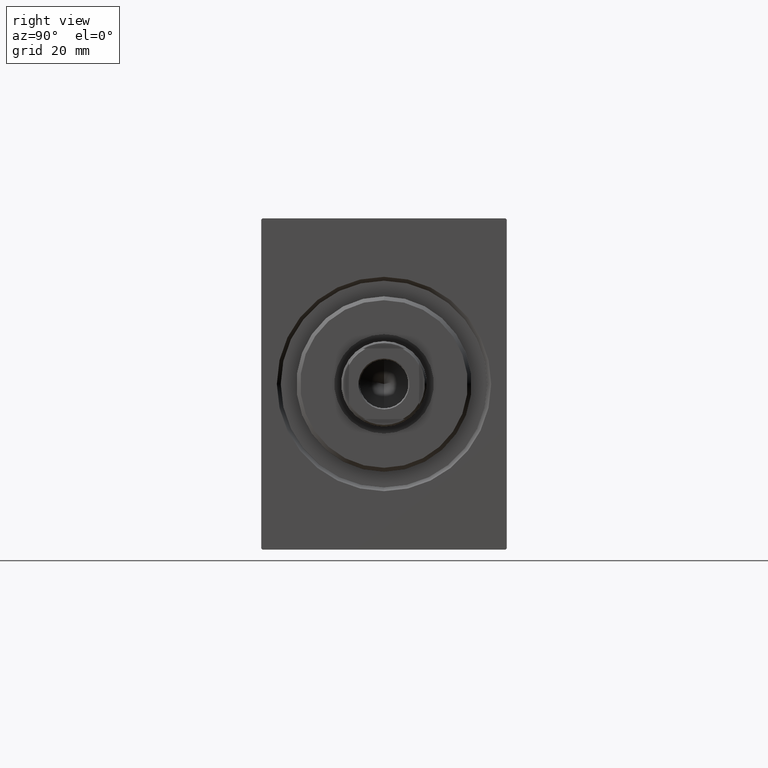
[diagram: clean part render]
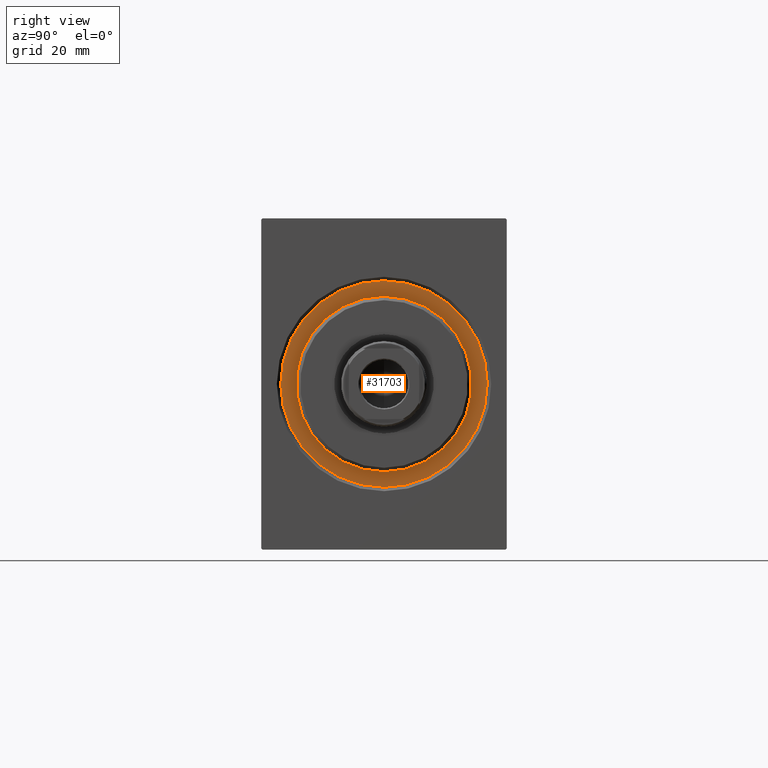
[diagram: same view with one face highlighted and labeled with its STEP entity id]
A machine part, right view. The second image highlights one B-rep face of the part: STEP entity #31703.
In plain terms, the highlighted planar face has unit normal (1, 0, 0).
Its self-contained STEP definition (entity closure, byte-faithful):
#1095 = VERTEX_POINT ( 'NONE', #29347 ) ;
#1522 = DIRECTION ( 'NONE',  ( 1.000000000000000000, -0.000000000000000000, 0.000000000000000000 ) ) ;
#1699 = FACE_BOUND ( 'NONE', #42216, .T. ) ;
#2732 = EDGE_CURVE ( 'NONE', #5631, #18704, #42893, .T. ) ;
#3836 = EDGE_CURVE ( 'NONE', #18704, #5631, #10363, .T. ) ;
#4303 = DIRECTION ( 'NONE',  ( 0.000000000000000000, 0.000000000000000000, -1.000000000000000000 ) ) ;
#4375 = DIRECTION ( 'NONE',  ( 1.000000000000000000, 0.000000000000000000, 0.000000000000000000 ) ) ;
#5631 = VERTEX_POINT ( 'NONE', #24942 ) ;
#6228 = DIRECTION ( 'NONE',  ( 0.000000000000000000, 0.000000000000000000, -1.000000000000000000 ) ) ;
#6314 = ORIENTED_EDGE ( 'NONE', *, *, #3836, .F. ) ;
#7112 = VERTEX_POINT ( 'NONE', #27473 ) ;
#10363 = CIRCLE ( 'NONE', #37349, 22.50000000000000355 ) ;
#12450 = AXIS2_PLACEMENT_3D ( 'NONE', #25942, #22699, #6228 ) ;
#12871 = AXIS2_PLACEMENT_3D ( 'NONE', #21217, #34442, #4303 ) ;
#13494 = CARTESIAN_POINT ( 'NONE',  ( 0.000000000000000000, 0.000000000000000000, 22.50000000000000355 ) ) ;
#15182 = DIRECTION ( 'NONE',  ( 0.000000000000000000, 0.000000000000000000, -1.000000000000000000 ) ) ;
#18704 = VERTEX_POINT ( 'NONE', #13494 ) ;
#19787 = AXIS2_PLACEMENT_3D ( 'NONE', #32795, #22403, #26276 ) ;
#21217 = CARTESIAN_POINT ( 'NONE',  ( 0.000000000000000000, 0.000000000000000000, 0.000000000000000000 ) ) ;
#22403 = DIRECTION ( 'NONE',  ( 1.000000000000000000, 0.000000000000000000, 0.000000000000000000 ) ) ;
#22503 = EDGE_CURVE ( 'NONE', #7112, #1095, #22997, .T. ) ;
#22699 = DIRECTION ( 'NONE',  ( 1.000000000000000000, -0.000000000000000000, 0.000000000000000000 ) ) ;
#22997 = CIRCLE ( 'NONE', #32699, 26.50000000000000355 ) ;
#24942 = CARTESIAN_POINT ( 'NONE',  ( 0.000000000000000000, 2.755455298081545172E-15, -22.50000000000000355 ) ) ;
#25942 = CARTESIAN_POINT ( 'NONE',  ( 0.000000000000000000, 0.000000000000000000, 0.000000000000000000 ) ) ;
#26276 = DIRECTION ( 'NONE',  ( 0.000000000000000000, 0.000000000000000000, -1.000000000000000000 ) ) ;
#27347 = DIRECTION ( 'NONE',  ( 0.000000000000000000, 0.000000000000000000, -1.000000000000000000 ) ) ;
#27398 = CIRCLE ( 'NONE', #19787, 26.50000000000000355 ) ;
#27473 = CARTESIAN_POINT ( 'NONE',  ( 0.000000000000000000, 3.245314017740486554E-15, 26.50000000000000355 ) ) ;
#29249 = ORIENTED_EDGE ( 'NONE', *, *, #32688, .T. ) ;
#29347 = CARTESIAN_POINT ( 'NONE',  ( 0.000000000000000000, 0.000000000000000000, -26.50000000000000355 ) ) ;
#29824 = EDGE_LOOP ( 'NONE', ( #29249, #40307 ) ) ;
#30600 = CARTESIAN_POINT ( 'NONE',  ( 0.000000000000000000, 0.000000000000000000, 0.000000000000000000 ) ) ;
#31184 = PLANE ( 'NONE',  #12871 ) ;
#31703 = ADVANCED_FACE ( 'NONE', ( #1699, #34010 ), #31184, .T. ) ;
#32688 = EDGE_CURVE ( 'NONE', #1095, #7112, #27398, .T. ) ;
#32699 = AXIS2_PLACEMENT_3D ( 'NONE', #30600, #4375, #27347 ) ;
#32795 = CARTESIAN_POINT ( 'NONE',  ( 0.000000000000000000, 0.000000000000000000, 0.000000000000000000 ) ) ;
#34010 = FACE_OUTER_BOUND ( 'NONE', #29824, .T. ) ;
#34442 = DIRECTION ( 'NONE',  ( 1.000000000000000000, 0.000000000000000000, 0.000000000000000000 ) ) ;
#34482 = CARTESIAN_POINT ( 'NONE',  ( 0.000000000000000000, 0.000000000000000000, 0.000000000000000000 ) ) ;
#34919 = ORIENTED_EDGE ( 'NONE', *, *, #2732, .F. ) ;
#37349 = AXIS2_PLACEMENT_3D ( 'NONE', #34482, #1522, #15182 ) ;
#40307 = ORIENTED_EDGE ( 'NONE', *, *, #22503, .T. ) ;
#42216 = EDGE_LOOP ( 'NONE', ( #6314, #34919 ) ) ;
#42893 = CIRCLE ( 'NONE', #12450, 22.50000000000000355 ) ;